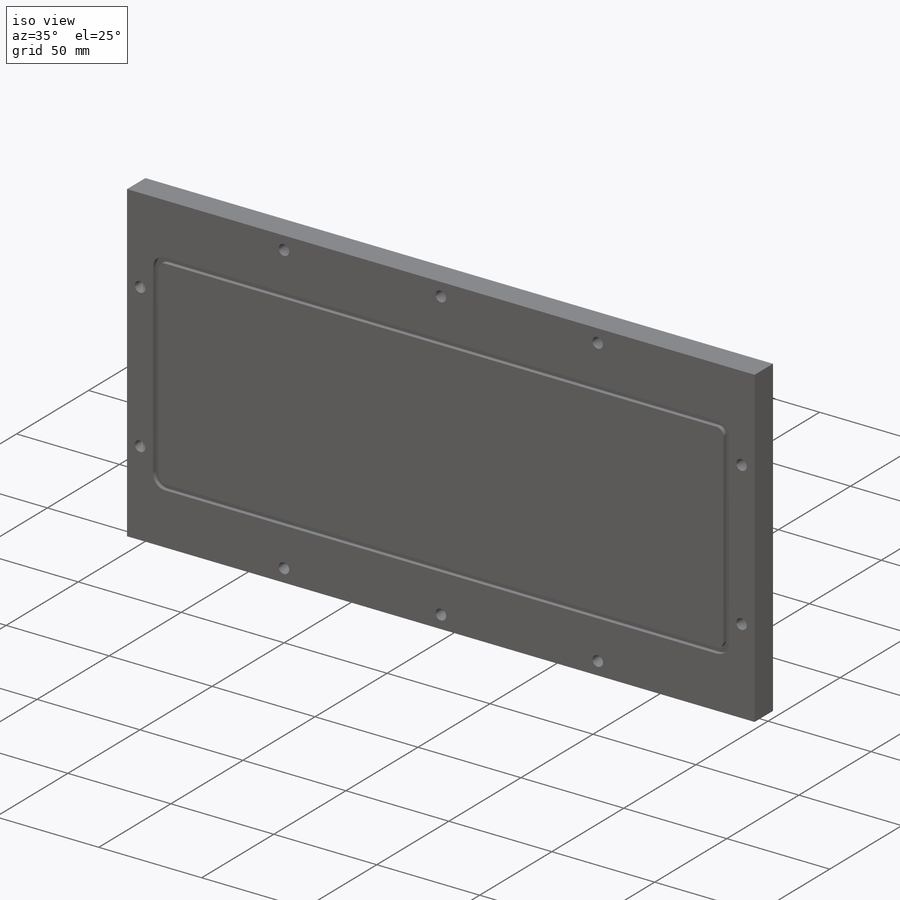
[diagram: iso view]
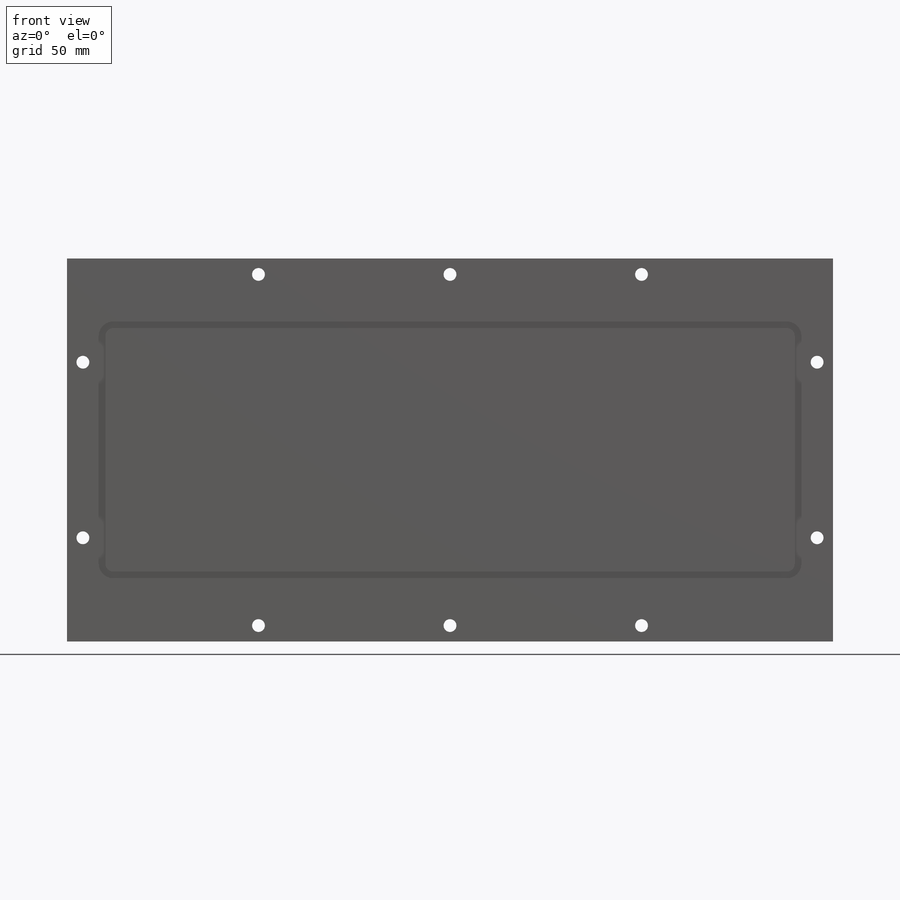
[diagram: front view]
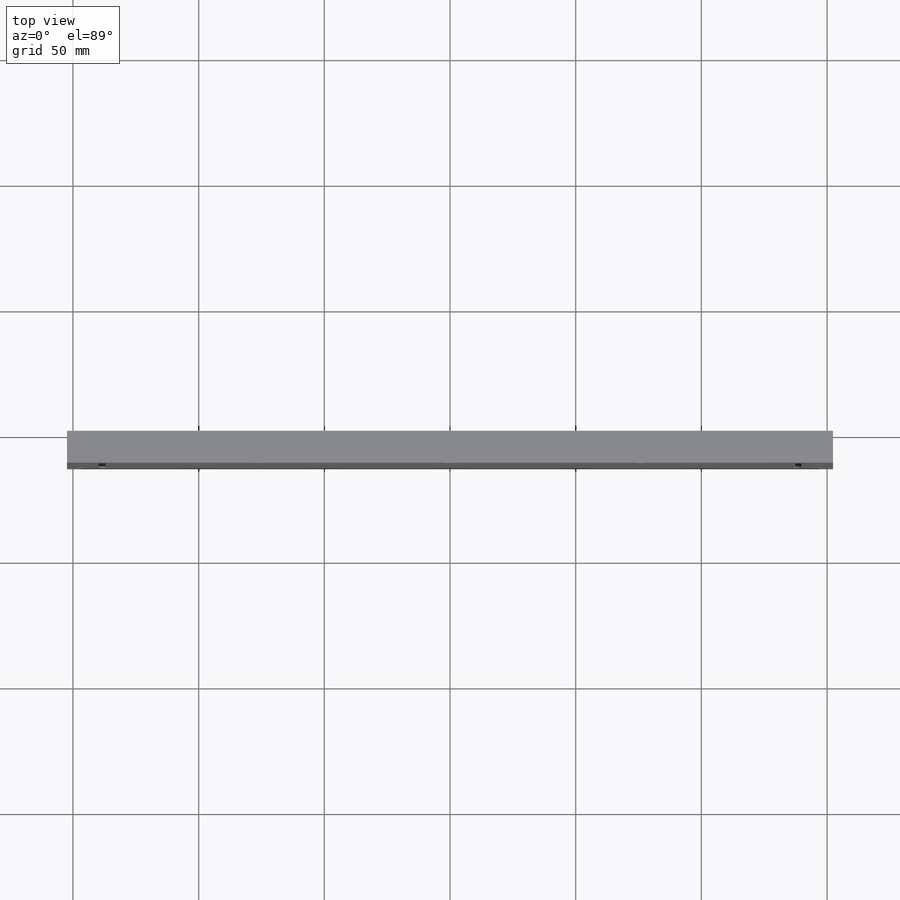
[diagram: top view]
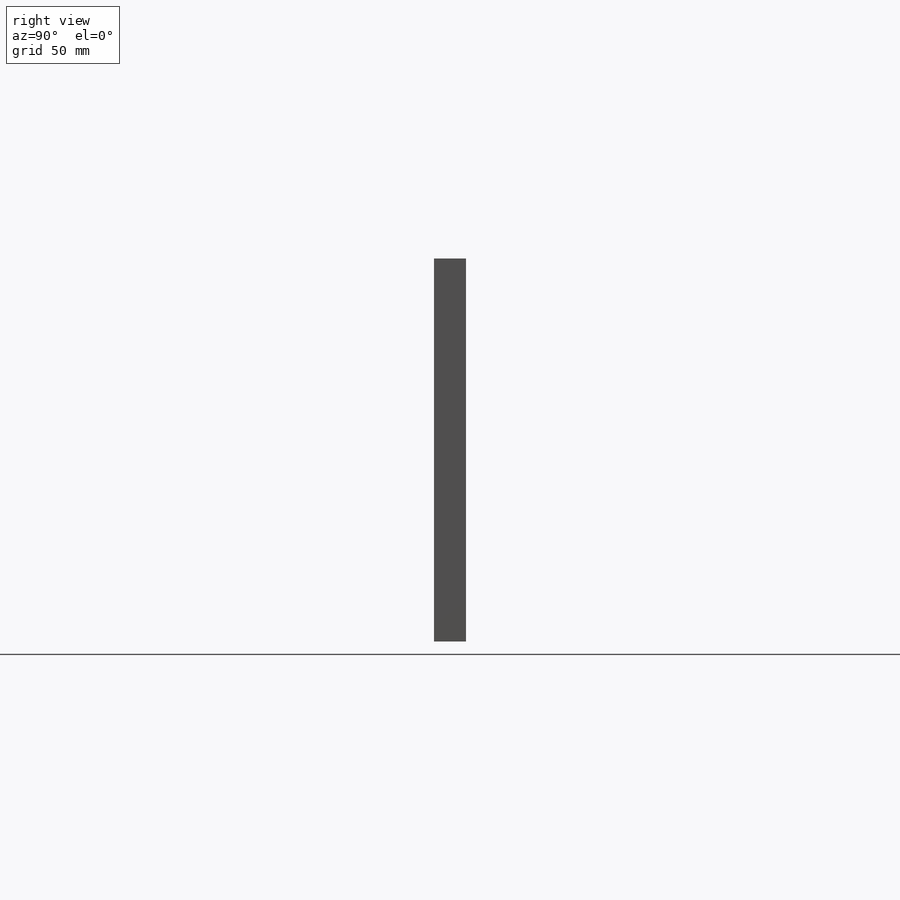
[diagram: right view]
SOLIDWORKS PART (.sldprt)
format: sldprt  version: not decoded by parser v0  size: 428,544 bytes
history: native  units: mm
features: sketch x15, hole x6, extrude x2, fillet x2, mirror x2, material x1, plane x1, cut_extrude x1 (+13 scaffold rows collapsed)
feature tree (43):
  scaffold x13  (default folders/planes/origin — collapsed)
  material  "Material <not specified>"
  plane  "Plane1"  Offset=12.7mm
  sketch  "Sketch1"  dims[D1=152.4mm D2=76.2mm D3=304.8mm D4=152.4mm]
  extrude  "Boss-Extrude1"  Depth=12.7mm
  sketch  "Sketch2"
  cut_extrude  "Cut-Extrude1"  Depth=2.032mm
  sketch  "Sketch3"
  extrude  "Boss-Extrude2"  Depth=2.032mm
  hole  "1/4-20 Tapped Hole1"  Diameter=5.1054mm Depth=7.62mm
  sketch  "Sketch5"
  sketch  "Sketch4"  dims[hole-wizard template sketch: 47 standard entries collapsed; hole parameters kept: c15.Tap Drill Depth=7.62mm c15.D3=~14.816244mm c15.Drill Angle=118.0deg]
  hole  "M3.5 Clearance Hole1"  Diameter=3.7973mm Depth=7.874mm
  sketch  "Sketch7"
  sketch  "Sketch6"  dims[hole-wizard template sketch: 47 standard entries collapsed; hole parameters kept: c15.Hole Depth=7.874mm c15.D3=~14.816244mm c15.Drill Angle=118.0deg]
  hole  "#6-32 Tapped Hole1"  Diameter=2.7051mm Depth=9.38784mm
  sketch  "Sketch9"
  sketch  "Sketch8"  dims[hole-wizard template sketch: 47 standard entries collapsed; hole parameters kept: c15.Tap Drill Depth=~9.38784mm c15.D3=~14.816244mm c15.Drill Angle=118.0deg]
  hole  "CBORE for #10 Socket Head Cap Screw1"  Diameter=5.1054mm Depth=12.7mm
  sketch  "Sketch11"  dims[D1=6.35mm D2=6.35mm D3=6.35mm D4=41.275mm D5=76.2mm]
  sketch  "Sketch10"  dims[hole-wizard template sketch: 43 standard entries collapsed; hole parameters kept: c12.C'Bore Dia.=9.525mm c12.C'Bore Depth=4.826mm]
  hole  "M3.5 Clearance Hole2"  Diameter=3.7973mm Depth=12.954mm
  sketch  "Sketch13"
  sketch  "Sketch12"  dims[hole-wizard template sketch: 47 standard entries collapsed; hole parameters kept: c15.Hole Depth=12.954mm c15.D3=~14.816244mm c15.Drill Angle=118.0deg]
  hole  "M3.5 Clearance Hole3"  Diameter=3.7973mm Depth=12.954mm
  sketch  "Sketch15"
  sketch  "Sketch14"  dims[hole-wizard template sketch: 47 standard entries collapsed; hole parameters kept: c15.Hole Depth=12.954mm c15.D3=~14.816244mm c15.Drill Angle=118.0deg]
  fillet  "Fillet1"  Radius=3.175mm
  fillet  "Fillet2"  Radius=5.8166mm
  mirror  "Mirror1"
  mirror  "Mirror2"
decode coverage: 19 of 28 modeling features carry decoded parameters
note: ~ marks probable driven/reference dimensions
summary: Diameter pulled from absorbed wizard sketch
note: suppression state not decoded; provenance and decode notes live in map.json
